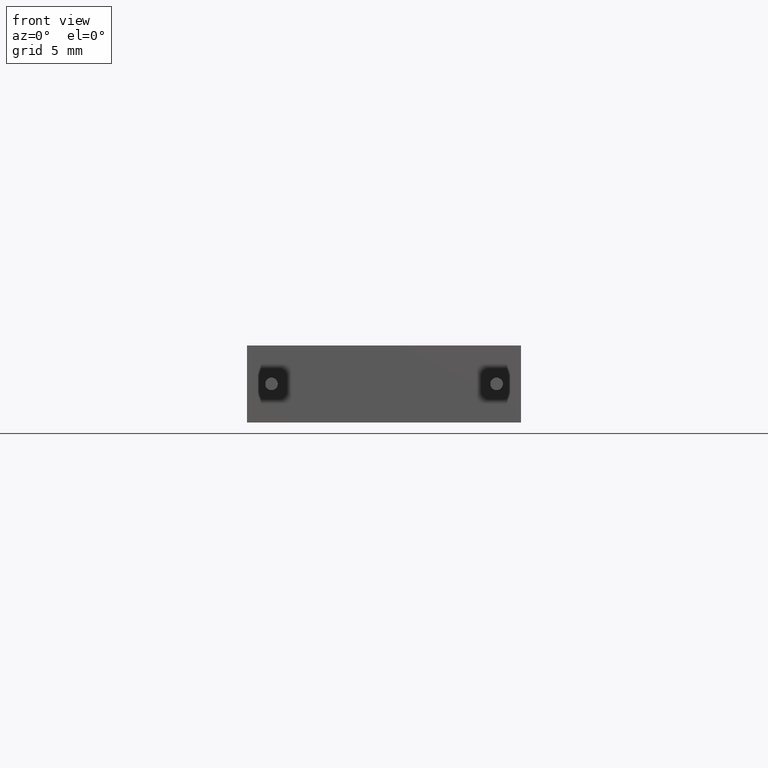
[diagram: clean part render]
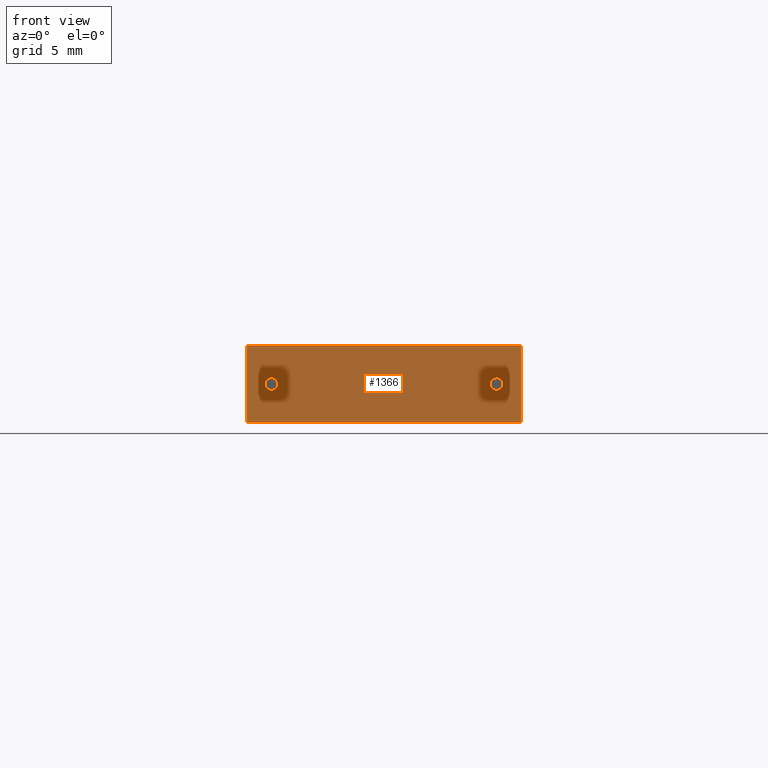
[diagram: same view with one face highlighted and labeled with its STEP entity id]
A machine part, front view. The second image highlights one B-rep face of the part: STEP entity #1366.
In plain terms, the highlighted planar face has unit normal (0, 1, 0).
Its self-contained STEP definition (entity closure, byte-faithful):
#8 = DIRECTION ( 'NONE',  ( -0.0000000000000000000, -0.0000000000000000000, -1.000000000000000000 ) ) ;
#28 = LINE ( 'NONE', #1537, #1382 ) ;
#71 = VERTEX_POINT ( 'NONE', #2208 ) ;
#88 = VERTEX_POINT ( 'NONE', #1071 ) ;
#148 = FACE_OUTER_BOUND ( 'NONE', #1359, .T. ) ;
#236 = DIRECTION ( 'NONE',  ( -0.0000000000000000000, -0.0000000000000000000, -1.000000000000000000 ) ) ;
#257 = ORIENTED_EDGE ( 'NONE', *, *, #751, .T. ) ;
#321 = EDGE_CURVE ( 'NONE', #897, #1993, #1412, .T. ) ;
#348 = DIRECTION ( 'NONE',  ( 0.0000000000000000000, 0.0000000000000000000, -1.000000000000000000 ) ) ;
#389 = DIRECTION ( 'NONE',  ( 0.0000000000000000000, 0.0000000000000000000, 1.000000000000000000 ) ) ;
#403 = ORIENTED_EDGE ( 'NONE', *, *, #1508, .T. ) ;
#459 = EDGE_LOOP ( 'NONE', ( #257, #463 ) ) ;
#463 = ORIENTED_EDGE ( 'NONE', *, *, #1608, .T. ) ;
#473 = DIRECTION ( 'NONE',  ( 1.000000000000000000, 0.0000000000000000000, 0.0000000000000000000 ) ) ;
#504 = AXIS2_PLACEMENT_3D ( 'NONE', #1873, #2079, #1504 ) ;
#670 = VERTEX_POINT ( 'NONE', #2061 ) ;
#751 = EDGE_CURVE ( 'NONE', #88, #1947, #974, .T. ) ;
#761 = CARTESIAN_POINT ( 'NONE',  ( 1.649999999999999500, 0.0000000000000000000, 2.174999999999999800 ) ) ;
#809 = CARTESIAN_POINT ( 'NONE',  ( 18.50000000000000000, 0.0000000000000000000, 5.200000000000000200 ) ) ;
#816 = AXIS2_PLACEMENT_3D ( 'NONE', #909, #2230, #2429 ) ;
#896 = CARTESIAN_POINT ( 'NONE',  ( 1.649999999999999500, 0.0000000000000000000, 3.024999999999999900 ) ) ;
#897 = VERTEX_POINT ( 'NONE', #896 ) ;
#899 = CIRCLE ( 'NONE', #504, 0.4250000000000000400 ) ;
#909 = CARTESIAN_POINT ( 'NONE',  ( 0.0000000000000000000, 0.0000000000000000000, 5.200000000000000200 ) ) ;
#916 = CARTESIAN_POINT ( 'NONE',  ( 16.85000000000000100, 0.0000000000000000000, 2.600000000000000100 ) ) ;
#963 = AXIS2_PLACEMENT_3D ( 'NONE', #1350, #1545, #389 ) ;
#974 = CIRCLE ( 'NONE', #1244, 0.4250000000000000400 ) ;
#1021 = ORIENTED_EDGE ( 'NONE', *, *, #2292, .F. ) ;
#1038 = EDGE_CURVE ( 'NONE', #71, #670, #1915, .T. ) ;
#1056 = ORIENTED_EDGE ( 'NONE', *, *, #1038, .F. ) ;
#1071 = CARTESIAN_POINT ( 'NONE',  ( 16.85000000000000100, 0.0000000000000000000, 3.024999999999999900 ) ) ;
#1121 = FACE_BOUND ( 'NONE', #1787, .T. ) ;
#1130 = EDGE_CURVE ( 'NONE', #1442, #71, #28, .T. ) ;
#1237 = LINE ( 'NONE', #1750, #2324 ) ;
#1244 = AXIS2_PLACEMENT_3D ( 'NONE', #1298, #1323, #348 ) ;
#1298 = CARTESIAN_POINT ( 'NONE',  ( 16.85000000000000100, 0.0000000000000000000, 2.600000000000000100 ) ) ;
#1323 = DIRECTION ( 'NONE',  ( -0.0000000000000000000, 1.000000000000000000, -0.0000000000000000000 ) ) ;
#1350 = CARTESIAN_POINT ( 'NONE',  ( 1.649999999999999500, 0.0000000000000000000, 2.600000000000000100 ) ) ;
#1359 = EDGE_LOOP ( 'NONE', ( #403, #1056, #1887, #2004 ) ) ;
#1366 = ADVANCED_FACE ( 'NONE', ( #1940, #148, #1121 ), #2412, .F. ) ;
#1382 = VECTOR ( 'NONE', #2301, 1000.000000000000000 ) ;
#1412 = CIRCLE ( 'NONE', #963, 0.4250000000000000400 ) ;
#1423 = CARTESIAN_POINT ( 'NONE',  ( 0.0000000000000000000, 0.0000000000000000000, 0.0000000000000000000 ) ) ;
#1442 = VERTEX_POINT ( 'NONE', #1792 ) ;
#1504 = DIRECTION ( 'NONE',  ( 0.0000000000000000000, 0.0000000000000000000, 1.000000000000000000 ) ) ;
#1508 = EDGE_CURVE ( 'NONE', #2447, #670, #1527, .T. ) ;
#1527 = LINE ( 'NONE', #1423, #1991 ) ;
#1537 = CARTESIAN_POINT ( 'NONE',  ( 0.0000000000000000000, 0.0000000000000000000, 5.200000000000000200 ) ) ;
#1545 = DIRECTION ( 'NONE',  ( -0.0000000000000000000, -1.000000000000000000, -0.0000000000000000000 ) ) ;
#1564 = VECTOR ( 'NONE', #8, 1000.000000000000000 ) ;
#1608 = EDGE_CURVE ( 'NONE', #1947, #88, #2169, .T. ) ;
#1750 = CARTESIAN_POINT ( 'NONE',  ( 0.0000000000000000000, 0.0000000000000000000, 5.200000000000000200 ) ) ;
#1787 = EDGE_LOOP ( 'NONE', ( #1927, #1021 ) ) ;
#1792 = CARTESIAN_POINT ( 'NONE',  ( 0.0000000000000000000, 0.0000000000000000000, 5.200000000000000200 ) ) ;
#1834 = CARTESIAN_POINT ( 'NONE',  ( 16.85000000000000100, 0.0000000000000000000, 2.174999999999999800 ) ) ;
#1855 = DIRECTION ( 'NONE',  ( -0.0000000000000000000, 1.000000000000000000, -0.0000000000000000000 ) ) ;
#1873 = CARTESIAN_POINT ( 'NONE',  ( 1.649999999999999500, 0.0000000000000000000, 2.600000000000000100 ) ) ;
#1887 = ORIENTED_EDGE ( 'NONE', *, *, #1130, .F. ) ;
#1915 = LINE ( 'NONE', #809, #1564 ) ;
#1927 = ORIENTED_EDGE ( 'NONE', *, *, #321, .F. ) ;
#1940 = FACE_BOUND ( 'NONE', #459, .T. ) ;
#1947 = VERTEX_POINT ( 'NONE', #1834 ) ;
#1991 = VECTOR ( 'NONE', #473, 1000.000000000000000 ) ;
#1993 = VERTEX_POINT ( 'NONE', #761 ) ;
#2004 = ORIENTED_EDGE ( 'NONE', *, *, #2451, .T. ) ;
#2061 = CARTESIAN_POINT ( 'NONE',  ( 18.50000000000000000, 0.0000000000000000000, 0.0000000000000000000 ) ) ;
#2079 = DIRECTION ( 'NONE',  ( -0.0000000000000000000, -1.000000000000000000, -0.0000000000000000000 ) ) ;
#2137 = CARTESIAN_POINT ( 'NONE',  ( 0.0000000000000000000, 0.0000000000000000000, 0.0000000000000000000 ) ) ;
#2169 = CIRCLE ( 'NONE', #2308, 0.4250000000000000400 ) ;
#2208 = CARTESIAN_POINT ( 'NONE',  ( 18.50000000000000000, 0.0000000000000000000, 5.200000000000000200 ) ) ;
#2230 = DIRECTION ( 'NONE',  ( 0.0000000000000000000, 1.000000000000000000, 0.0000000000000000000 ) ) ;
#2292 = EDGE_CURVE ( 'NONE', #1993, #897, #899, .T. ) ;
#2301 = DIRECTION ( 'NONE',  ( 1.000000000000000000, 0.0000000000000000000, 0.0000000000000000000 ) ) ;
#2308 = AXIS2_PLACEMENT_3D ( 'NONE', #916, #1855, #2446 ) ;
#2324 = VECTOR ( 'NONE', #236, 1000.000000000000000 ) ;
#2412 = PLANE ( 'NONE',  #816 ) ;
#2429 = DIRECTION ( 'NONE',  ( 0.0000000000000000000, -0.0000000000000000000, 1.000000000000000000 ) ) ;
#2446 = DIRECTION ( 'NONE',  ( 0.0000000000000000000, 0.0000000000000000000, -1.000000000000000000 ) ) ;
#2447 = VERTEX_POINT ( 'NONE', #2137 ) ;
#2451 = EDGE_CURVE ( 'NONE', #1442, #2447, #1237, .T. ) ;